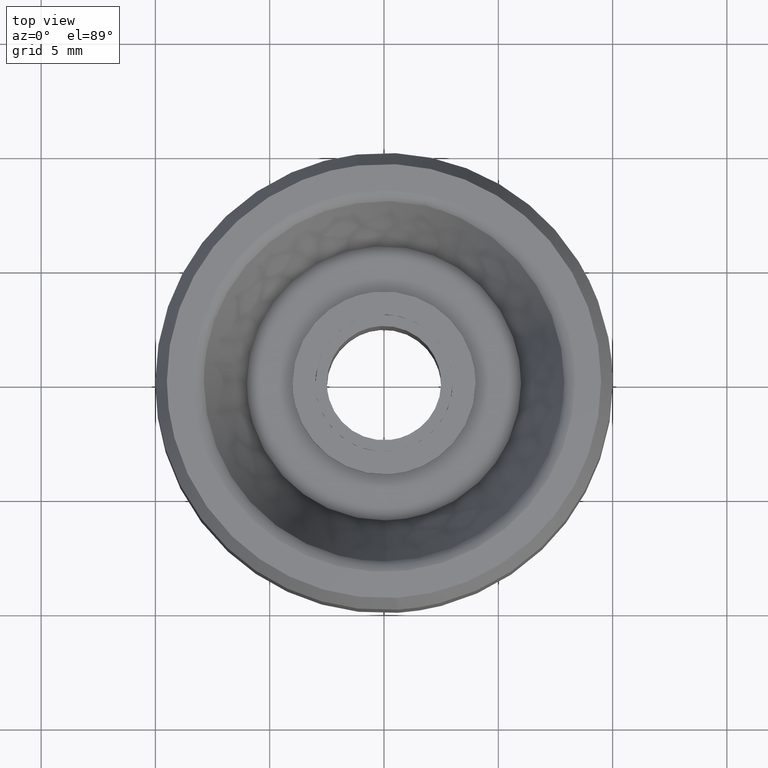
[diagram: clean part render]
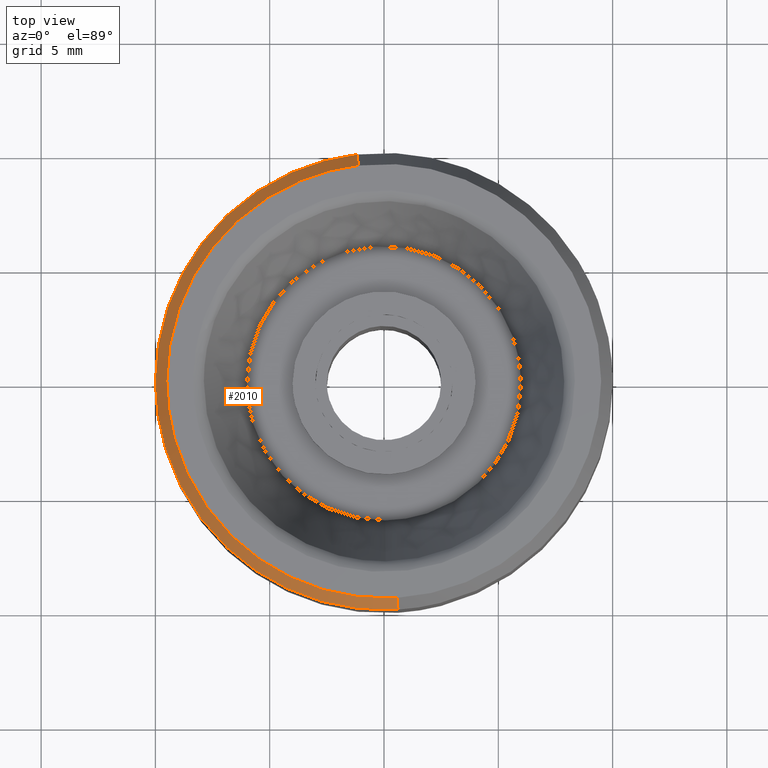
[diagram: same view with one face highlighted and labeled with its STEP entity id]
A machine part, top view. The second image highlights one B-rep face of the part: STEP entity #2010.
In plain terms, the highlighted face is a freeform B-spline surface patch.
Its self-contained STEP definition (entity closure, byte-faithful):
#1776=CARTESIAN_POINT('',(0.610485173869379,-9.981347883809157,14.000000454971101));
#1777=VERTEX_POINT('',#1776);
#1829=CARTESIAN_POINT('',(-1.180342346569118,9.930095263636622,13.999999999999719));
#1830=VERTEX_POINT('',#1829);
#1851=CARTESIAN_POINT('',(-10.0,0.0,14.0));
#1852=VERTEX_POINT('',#1851);
#1853=CARTESIAN_POINT('',(0.610485173869379,-9.981347883809157,14.000000454971104));
#1854=CARTESIAN_POINT('',(0.305527202712148,-10.0,14.000000000000007));
#1855=CARTESIAN_POINT('',(0.0,-10.0,14.0));
#1856=CARTESIAN_POINT('',(-10.000000000000002,-10.000000000000002,13.999999999999998));
#1857=CARTESIAN_POINT('',(-10.0,0.0,14.0));
#1865=(BOUNDED_CURVE()B_SPLINE_CURVE(2,(#1853,#1854,#1855,#1856,#1857),.UNSPECIFIED.,.F.,.U.)B_SPLINE_CURVE_WITH_KNOTS((3,2,3),(0.739332977076591,0.750000000000000,1.0),.UNSPECIFIED.)CURVE()GEOMETRIC_REPRESENTATION_ITEM()RATIONAL_B_SPLINE_CURVE((0.976072073466625,0.987502805283224,1.0,0.707106781186548,1.0))REPRESENTATION_ITEM(''));
#1866=EDGE_CURVE('',#1777,#1852,#1865,.T.);
#1868=CARTESIAN_POINT('',(-10.0,0.0,14.0));
#1869=CARTESIAN_POINT('',(-10.0,8.881745259510947,14.000000000000002));
#1870=CARTESIAN_POINT('',(-1.180342346569118,9.930095263636622,13.999999999999721));
#1878=(BOUNDED_CURVE()B_SPLINE_CURVE(2,(#1868,#1869,#1870),.UNSPECIFIED.,.F.,.U.)B_SPLINE_CURVE_WITH_KNOTS((3,3),(0.0,0.229562473515593),.UNSPECIFIED.)CURVE()GEOMETRIC_REPRESENTATION_ITEM()RATIONAL_B_SPLINE_CURVE((1.0,0.731050832852961,0.956026754187785))REPRESENTATION_ITEM(''));
#1879=EDGE_CURVE('',#1852,#1830,#1878,.T.);
#1907=CARTESIAN_POINT('',(-1.121325229249212,9.433590500454557,14.999999999998179));
#1908=VERTEX_POINT('',#1907);
#1909=CARTESIAN_POINT('',(-1.121325229249212,9.433590500454557,14.999999999998179));
#1910=CARTESIAN_POINT('',(-1.180342346569118,9.930095263636622,13.999999999999719));
#1911=QUASI_UNIFORM_CURVE('',1,(#1909,#1910),.UNSPECIFIED.,.F.,.U.);
#1912=EDGE_CURVE('',#1908,#1830,#1911,.T.);
#1931=CARTESIAN_POINT('',(0.579961125587577,-9.482280585007928,14.999999999998829));
#1932=VERTEX_POINT('',#1931);
#1946=CARTESIAN_POINT('',(0.579961125587577,-9.482280585007928,14.999999999998829));
#1947=CARTESIAN_POINT('',(0.610485173869379,-9.981347883809157,14.000000454971101));
#1948=QUASI_UNIFORM_CURVE('',1,(#1946,#1947),.UNSPECIFIED.,.F.,.U.);
#1949=EDGE_CURVE('',#1932,#1777,#1948,.T.);
#1956=CARTESIAN_POINT('',(0.579198018836956,-9.469803900027459,15.025000000000000));
#1957=CARTESIAN_POINT('',(-8.890605881190504,-10.049001918864416,15.025000000000004));
#1958=CARTESIAN_POINT('',(-9.469803900027459,-0.579198018836956,15.025000000000000));
#1959=CARTESIAN_POINT('',(-10.016771541499853,8.363643869339764,15.024999999999997));
#1960=CARTESIAN_POINT('',(-1.119849801305996,9.421177881375284,15.025000000000002));
#1961=CARTESIAN_POINT('',(0.611267579761360,-9.994136586323448,13.974375000000000));
#1962=CARTESIAN_POINT('',(-9.382869006562087,-10.605404166084806,13.974374999999998));
#1963=CARTESIAN_POINT('',(-9.994136586323448,-0.611267579761360,13.974375000000000));
#1964=CARTESIAN_POINT('',(-10.571389227970910,8.826729684371390,13.974375000000000));
#1965=CARTESIAN_POINT('',(-1.181854660199125,9.942818198193198,13.974375000000000));
#1973=(BOUNDED_SURFACE()B_SPLINE_SURFACE(2,1,((#1956,#1961),(#1957,#1962),(#1958,#1963),(#1959,#1964),(#1960,#1965)),.UNSPECIFIED.,.F.,.F.,.U.)B_SPLINE_SURFACE_WITH_KNOTS((3,2,3),(2,2),(0.0,16.589770939995422,32.515951042391023),(0.0,1.0),.UNSPECIFIED.)GEOMETRIC_REPRESENTATION_ITEM()RATIONAL_B_SPLINE_SURFACE(((1.0,1.0),(0.707106781186548,0.707106781186548),(1.0,1.0),(0.718822509939086,0.718822509939086),(0.977505800795127,0.977505800795127)))REPRESENTATION_ITEM('')SURFACE());
#1974=ORIENTED_EDGE('',*,*,#1879,.F.);
#1975=ORIENTED_EDGE('',*,*,#1866,.F.);
#1976=ORIENTED_EDGE('',*,*,#1949,.F.);
#1977=CARTESIAN_POINT('',(-9.500000000000000,0.0,15.0));
#1978=VERTEX_POINT('',#1977);
#1979=CARTESIAN_POINT('',(0.579961125587577,-9.482280585007928,14.999999999998831));
#1980=CARTESIAN_POINT('',(0.290251251343012,-9.500000000000000,14.999999999999996));
#1981=CARTESIAN_POINT('',(0.0,-9.500000000000000,15.0));
#1982=CARTESIAN_POINT('',(-9.500000000000000,-9.500000000000000,14.999999999999995));
#1983=CARTESIAN_POINT('',(-9.500000000000000,0.0,15.0));
#1991=(BOUNDED_CURVE()B_SPLINE_CURVE(2,(#1979,#1980,#1981,#1982,#1983),.UNSPECIFIED.,.F.,.U.)B_SPLINE_CURVE_WITH_KNOTS((3,2,3),(0.739332962241735,0.750000000000000,1.0),.UNSPECIFIED.)CURVE()GEOMETRIC_REPRESENTATION_ITEM()RATIONAL_B_SPLINE_CURVE((0.976072041672703,0.987502787903109,1.0,0.707106781186548,1.0))REPRESENTATION_ITEM(''));
#1992=EDGE_CURVE('',#1932,#1978,#1991,.T.);
#1993=ORIENTED_EDGE('',*,*,#1992,.T.);
#1994=CARTESIAN_POINT('',(-9.500000000000000,0.0,15.0));
#1995=CARTESIAN_POINT('',(-9.499999999999998,8.437657996520159,15.000000000000005));
#1996=CARTESIAN_POINT('',(-1.121325229249212,9.433590500454557,14.999999999998183));
#2004=(BOUNDED_CURVE()B_SPLINE_CURVE(2,(#1994,#1995,#1996),.UNSPECIFIED.,.F.,.U.)B_SPLINE_CURVE_WITH_KNOTS((3,3),(0.0,0.229562473515290),.UNSPECIFIED.)CURVE()GEOMETRIC_REPRESENTATION_ITEM()RATIONAL_B_SPLINE_CURVE((1.0,0.731050832853316,0.956026754187191))REPRESENTATION_ITEM(''));
#2005=EDGE_CURVE('',#1978,#1908,#2004,.T.);
#2006=ORIENTED_EDGE('',*,*,#2005,.T.);
#2007=ORIENTED_EDGE('',*,*,#1912,.T.);
#2008=EDGE_LOOP('',(#1974,#1975,#1976,#1993,#2006,#2007));
#2009=FACE_OUTER_BOUND('',#2008,.T.);
#2010=ADVANCED_FACE('',(#2009),#1973,.T.);